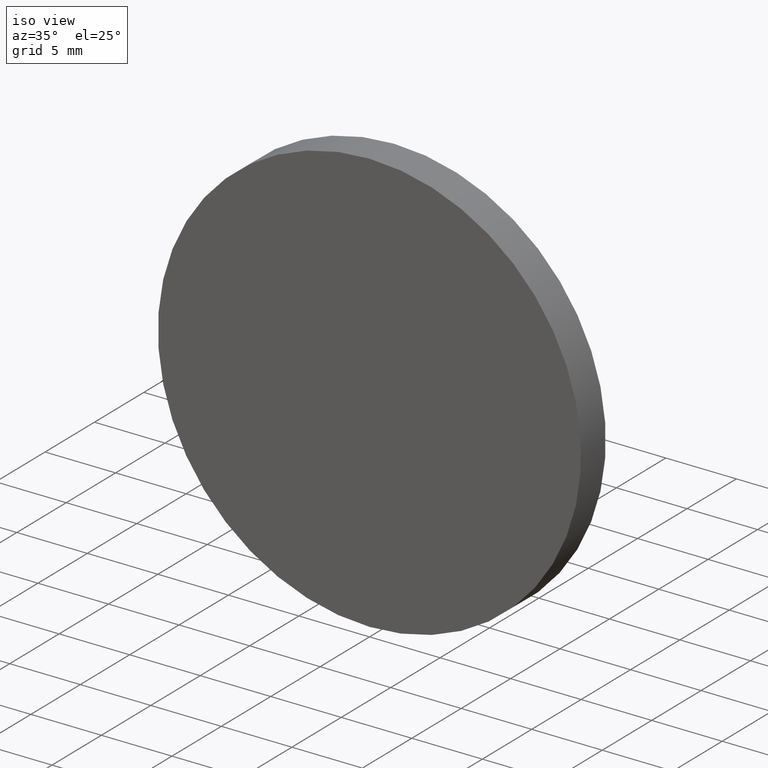
[diagram: clean part render]
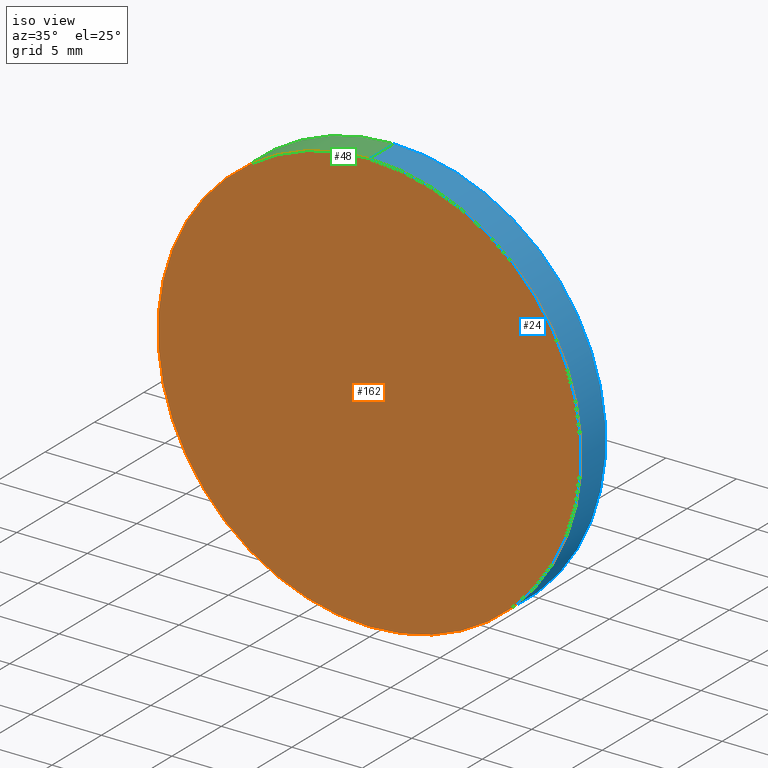
[diagram: same view with three faces highlighted in distinct colors, each labeled with its STEP entity id]
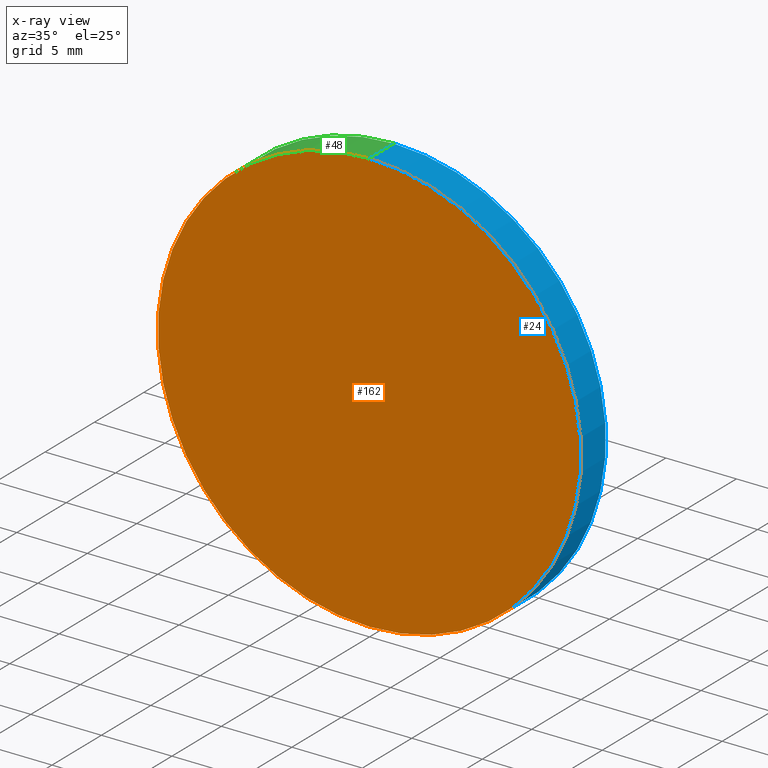
[diagram: x-ray of the same camera — body ghosted, the three highlighted faces saturated]
A machine part, iso view with three faces highlighted in distinct colors.
The next image is the same camera in x-ray (body ghosted, the three faces saturated) — at least one of them is partly hidden behind the body in this view.
Their STEP definitions:

[orange] entity #162 — the highlighted planar face has unit normal (0, -1, 0).
#2 = FACE_OUTER_BOUND ( 'NONE', #117, .T. ) ;
#6 = PLANE ( 'NONE',  #23 ) ;
#23 = AXIS2_PLACEMENT_3D ( 'NONE', #55, #127, #77 ) ;
#46 = CARTESIAN_POINT ( 'NONE',  ( 1.836970198721029589E-15, -1.734723475976807094E-15, -15.00000000000000000 ) ) ;
#55 = CARTESIAN_POINT ( 'NONE',  ( 0.000000000000000000, -9.184850993605147944E-16, 0.000000000000000000 ) ) ;
#66 = ORIENTED_EDGE ( 'NONE', *, *, #190, .F. ) ;
#77 = DIRECTION ( 'NONE',  ( 0.000000000000000000, -0.000000000000000000, -1.000000000000000000 ) ) ;
#78 = CIRCLE ( 'NONE', #185, 15.00000000000000000 ) ;
#80 = VERTEX_POINT ( 'NONE', #106 ) ;
#98 = EDGE_CURVE ( 'NONE', #80, #186, #78, .T. ) ;
#106 = CARTESIAN_POINT ( 'NONE',  ( 0.000000000000000000, -1.734723475976807094E-15, 15.00000000000000000 ) ) ;
#117 = EDGE_LOOP ( 'NONE', ( #145, #66 ) ) ;
#127 = DIRECTION ( 'NONE',  ( 0.000000000000000000, -1.000000000000000000, 0.000000000000000000 ) ) ;
#131 = DIRECTION ( 'NONE',  ( 0.000000000000000000, 0.000000000000000000, 1.000000000000000000 ) ) ;
#135 = DIRECTION ( 'NONE',  ( 0.000000000000000000, 0.000000000000000000, 1.000000000000000000 ) ) ;
#145 = ORIENTED_EDGE ( 'NONE', *, *, #98, .F. ) ;
#162 = ADVANCED_FACE ( 'NONE', ( #2 ), #6, .T. ) ;
#165 = CARTESIAN_POINT ( 'NONE',  ( 0.000000000000000000, -1.734723475976807094E-15, 0.000000000000000000 ) ) ;
#170 = CIRCLE ( 'NONE', #179, 15.00000000000000000 ) ;
#176 = CARTESIAN_POINT ( 'NONE',  ( 0.000000000000000000, -1.734723475976807094E-15, 0.000000000000000000 ) ) ;
#179 = AXIS2_PLACEMENT_3D ( 'NONE', #165, #184, #135 ) ;
#184 = DIRECTION ( 'NONE',  ( -0.000000000000000000, 1.000000000000000000, -0.000000000000000000 ) ) ;
#185 = AXIS2_PLACEMENT_3D ( 'NONE', #176, #188, #131 ) ;
#186 = VERTEX_POINT ( 'NONE', #46 ) ;
#188 = DIRECTION ( 'NONE',  ( -0.000000000000000000, 1.000000000000000000, -0.000000000000000000 ) ) ;
#190 = EDGE_CURVE ( 'NONE', #186, #80, #170, .T. ) ;

[blue] entity #24 — the highlighted cylindrical surface (partial cylindrical patch) has radius 15 mm, axis along (-0, 1, -0).
#4 = FACE_OUTER_BOUND ( 'NONE', #192, .T. ) ;
#7 = EDGE_CURVE ( 'NONE', #80, #58, #146, .T. ) ;
#20 = DIRECTION ( 'NONE',  ( -0.000000000000000000, 1.000000000000000000, -0.000000000000000000 ) ) ;
#22 = DIRECTION ( 'NONE',  ( -0.000000000000000000, 1.000000000000000000, -0.000000000000000000 ) ) ;
#24 = ADVANCED_FACE ( 'NONE', ( #4 ), #144, .T. ) ;
#32 = AXIS2_PLACEMENT_3D ( 'NONE', #72, #187, #69 ) ;
#46 = CARTESIAN_POINT ( 'NONE',  ( 1.836970198721029589E-15, -1.734723475976807094E-15, -15.00000000000000000 ) ) ;
#54 = ORIENTED_EDGE ( 'NONE', *, *, #133, .T. ) ;
#56 = LINE ( 'NONE', #110, #64 ) ;
#58 = VERTEX_POINT ( 'NONE', #102 ) ;
#64 = VECTOR ( 'NONE', #20, 1000.000000000000000 ) ;
#69 = DIRECTION ( 'NONE',  ( 0.000000000000000000, 0.000000000000000000, 1.000000000000000000 ) ) ;
#72 = CARTESIAN_POINT ( 'NONE',  ( 0.000000000000000000, 2.939999999999999947, 0.000000000000000000 ) ) ;
#75 = ORIENTED_EDGE ( 'NONE', *, *, #98, .T. ) ;
#78 = CIRCLE ( 'NONE', #185, 15.00000000000000000 ) ;
#80 = VERTEX_POINT ( 'NONE', #106 ) ;
#92 = DIRECTION ( 'NONE',  ( 0.000000000000000000, 0.000000000000000000, 1.000000000000000000 ) ) ;
#94 = CIRCLE ( 'NONE', #109, 15.00000000000000000 ) ;
#98 = EDGE_CURVE ( 'NONE', #80, #186, #78, .T. ) ;
#102 = CARTESIAN_POINT ( 'NONE',  ( 0.000000000000000000, 2.500000000000028422, 14.99999999999983302 ) ) ;
#106 = CARTESIAN_POINT ( 'NONE',  ( 0.000000000000000000, -1.734723475976807094E-15, 15.00000000000000000 ) ) ;
#108 = VERTEX_POINT ( 'NONE', #143 ) ;
#109 = AXIS2_PLACEMENT_3D ( 'NONE', #118, #130, #92 ) ;
#110 = CARTESIAN_POINT ( 'NONE',  ( 1.836970198721029589E-15, 2.939999999999999947, -15.00000000000000000 ) ) ;
#118 = CARTESIAN_POINT ( 'NONE',  ( 0.000000000000000000, 2.499999999999998224, 0.000000000000000000 ) ) ;
#130 = DIRECTION ( 'NONE',  ( -0.000000000000000000, 1.000000000000000000, -0.000000000000000000 ) ) ;
#131 = DIRECTION ( 'NONE',  ( 0.000000000000000000, 0.000000000000000000, 1.000000000000000000 ) ) ;
#133 = EDGE_CURVE ( 'NONE', #186, #108, #56, .T. ) ;
#143 = CARTESIAN_POINT ( 'NONE',  ( 1.836970198721009473E-15, 2.500000000000028422, -14.99999999999983302 ) ) ;
#144 = CYLINDRICAL_SURFACE ( 'NONE', #32, 15.00000000000000000 ) ;
#146 = LINE ( 'NONE', #175, #193 ) ;
#147 = EDGE_CURVE ( 'NONE', #58, #108, #94, .T. ) ;
#148 = ORIENTED_EDGE ( 'NONE', *, *, #147, .F. ) ;
#150 = ORIENTED_EDGE ( 'NONE', *, *, #7, .F. ) ;
#175 = CARTESIAN_POINT ( 'NONE',  ( 0.000000000000000000, 2.939999999999999947, 15.00000000000000000 ) ) ;
#176 = CARTESIAN_POINT ( 'NONE',  ( 0.000000000000000000, -1.734723475976807094E-15, 0.000000000000000000 ) ) ;
#185 = AXIS2_PLACEMENT_3D ( 'NONE', #176, #188, #131 ) ;
#186 = VERTEX_POINT ( 'NONE', #46 ) ;
#187 = DIRECTION ( 'NONE',  ( -0.000000000000000000, 1.000000000000000000, -0.000000000000000000 ) ) ;
#188 = DIRECTION ( 'NONE',  ( -0.000000000000000000, 1.000000000000000000, -0.000000000000000000 ) ) ;
#192 = EDGE_LOOP ( 'NONE', ( #75, #54, #148, #150 ) ) ;
#193 = VECTOR ( 'NONE', #22, 1000.000000000000000 ) ;

[green] entity #48 — the highlighted cylindrical surface (partial cylindrical patch) has radius 15 mm, axis along (-0, 1, -0).
#7 = EDGE_CURVE ( 'NONE', #80, #58, #146, .T. ) ;
#19 = EDGE_LOOP ( 'NONE', ( #116, #115, #34, #132 ) ) ;
#20 = DIRECTION ( 'NONE',  ( -0.000000000000000000, 1.000000000000000000, -0.000000000000000000 ) ) ;
#22 = DIRECTION ( 'NONE',  ( -0.000000000000000000, 1.000000000000000000, -0.000000000000000000 ) ) ;
#34 = ORIENTED_EDGE ( 'NONE', *, *, #7, .T. ) ;
#37 = CARTESIAN_POINT ( 'NONE',  ( 0.000000000000000000, 2.939999999999999947, 0.000000000000000000 ) ) ;
#38 = EDGE_CURVE ( 'NONE', #108, #58, #59, .T. ) ;
#46 = CARTESIAN_POINT ( 'NONE',  ( 1.836970198721029589E-15, -1.734723475976807094E-15, -15.00000000000000000 ) ) ;
#48 = ADVANCED_FACE ( 'NONE', ( #61 ), #161, .T. ) ;
#56 = LINE ( 'NONE', #110, #64 ) ;
#58 = VERTEX_POINT ( 'NONE', #102 ) ;
#59 = CIRCLE ( 'NONE', #85, 15.00000000000000000 ) ;
#61 = FACE_OUTER_BOUND ( 'NONE', #19, .T. ) ;
#64 = VECTOR ( 'NONE', #20, 1000.000000000000000 ) ;
#70 = AXIS2_PLACEMENT_3D ( 'NONE', #37, #96, #157 ) ;
#80 = VERTEX_POINT ( 'NONE', #106 ) ;
#85 = AXIS2_PLACEMENT_3D ( 'NONE', #89, #121, #173 ) ;
#89 = CARTESIAN_POINT ( 'NONE',  ( 0.000000000000000000, 2.499999999999998224, 0.000000000000000000 ) ) ;
#96 = DIRECTION ( 'NONE',  ( -0.000000000000000000, 1.000000000000000000, -0.000000000000000000 ) ) ;
#102 = CARTESIAN_POINT ( 'NONE',  ( 0.000000000000000000, 2.500000000000028422, 14.99999999999983302 ) ) ;
#106 = CARTESIAN_POINT ( 'NONE',  ( 0.000000000000000000, -1.734723475976807094E-15, 15.00000000000000000 ) ) ;
#108 = VERTEX_POINT ( 'NONE', #143 ) ;
#110 = CARTESIAN_POINT ( 'NONE',  ( 1.836970198721029589E-15, 2.939999999999999947, -15.00000000000000000 ) ) ;
#115 = ORIENTED_EDGE ( 'NONE', *, *, #190, .T. ) ;
#116 = ORIENTED_EDGE ( 'NONE', *, *, #133, .F. ) ;
#121 = DIRECTION ( 'NONE',  ( -0.000000000000000000, 1.000000000000000000, -0.000000000000000000 ) ) ;
#132 = ORIENTED_EDGE ( 'NONE', *, *, #38, .F. ) ;
#133 = EDGE_CURVE ( 'NONE', #186, #108, #56, .T. ) ;
#135 = DIRECTION ( 'NONE',  ( 0.000000000000000000, 0.000000000000000000, 1.000000000000000000 ) ) ;
#143 = CARTESIAN_POINT ( 'NONE',  ( 1.836970198721009473E-15, 2.500000000000028422, -14.99999999999983302 ) ) ;
#146 = LINE ( 'NONE', #175, #193 ) ;
#157 = DIRECTION ( 'NONE',  ( 0.000000000000000000, 0.000000000000000000, 1.000000000000000000 ) ) ;
#161 = CYLINDRICAL_SURFACE ( 'NONE', #70, 15.00000000000000000 ) ;
#165 = CARTESIAN_POINT ( 'NONE',  ( 0.000000000000000000, -1.734723475976807094E-15, 0.000000000000000000 ) ) ;
#170 = CIRCLE ( 'NONE', #179, 15.00000000000000000 ) ;
#173 = DIRECTION ( 'NONE',  ( 0.000000000000000000, 0.000000000000000000, 1.000000000000000000 ) ) ;
#175 = CARTESIAN_POINT ( 'NONE',  ( 0.000000000000000000, 2.939999999999999947, 15.00000000000000000 ) ) ;
#179 = AXIS2_PLACEMENT_3D ( 'NONE', #165, #184, #135 ) ;
#184 = DIRECTION ( 'NONE',  ( -0.000000000000000000, 1.000000000000000000, -0.000000000000000000 ) ) ;
#186 = VERTEX_POINT ( 'NONE', #46 ) ;
#190 = EDGE_CURVE ( 'NONE', #186, #80, #170, .T. ) ;
#193 = VECTOR ( 'NONE', #22, 1000.000000000000000 ) ;